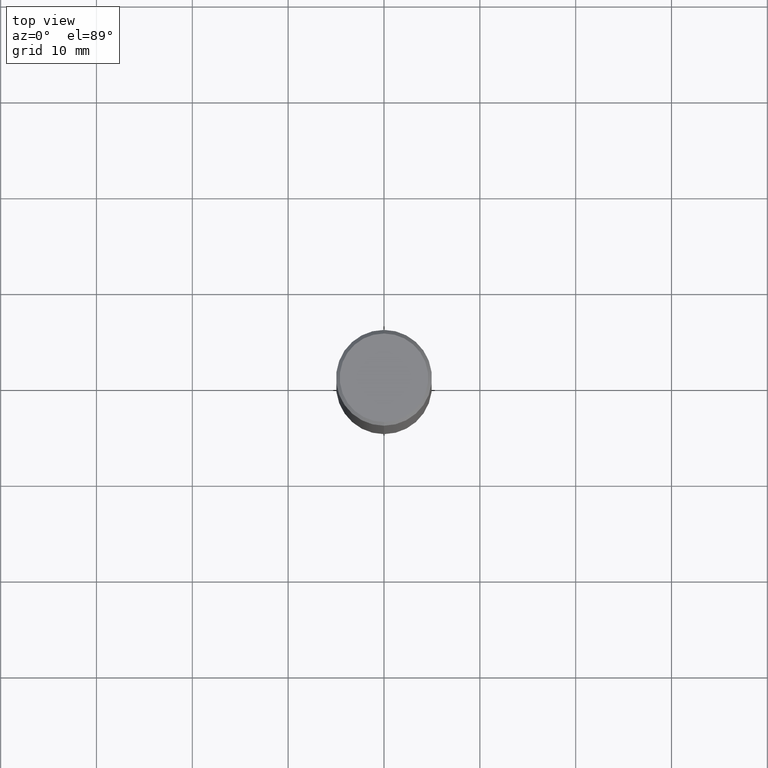
[diagram: clean part render]
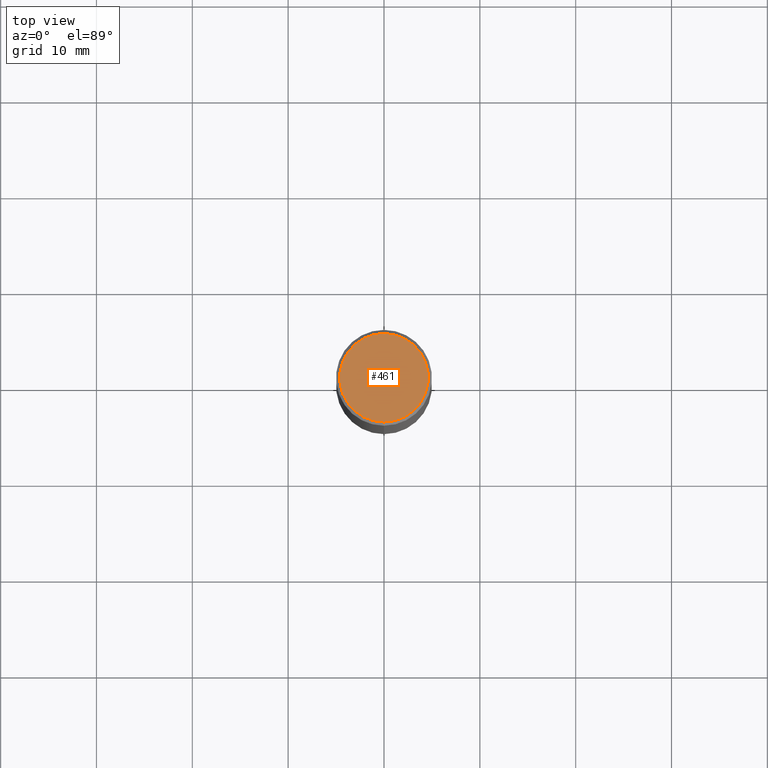
[diagram: same view with one face highlighted and labeled with its STEP entity id]
A machine part, top view. The second image highlights one B-rep face of the part: STEP entity #461.
In plain terms, the highlighted planar face has unit normal (0, -0, -1).
Its self-contained STEP definition (entity closure, byte-faithful):
#28 = CARTESIAN_POINT ( 'NONE',  ( 2.030115060229500884E-44, -2.897056693185172235E-30, -8.299521794288719114E-16 ) ) ;
#37 = CARTESIAN_POINT ( 'NONE',  ( 2.030115060229500884E-44, -2.897056693185172235E-30, -8.299521794288719114E-16 ) ) ;
#50 = CARTESIAN_POINT ( 'NONE',  ( 1.269851762937247450E-15, 0.1818500000000000116, -1.049747312338683111E-15 ) ) ;
#97 = AXIS2_PLACEMENT_3D ( 'NONE', #50, #298, #451 ) ;
#101 = CARTESIAN_POINT ( 'NONE',  ( 1.322223983019894726E-15, 0.1818500000000000116, -1.464723402053119215E-15 ) ) ;
#134 = EDGE_CURVE ( 'NONE', #465, #494, #489, .T. ) ;
#142 = ORIENTED_EDGE ( 'NONE', *, *, #134, .T. ) ;
#152 = DIRECTION ( 'NONE',  ( -2.446062689571483486E-29, 3.490630864032153582E-15, 1.000000000000000000 ) ) ;
#168 = AXIS2_PLACEMENT_3D ( 'NONE', #37, #152, #477 ) ;
#206 = CIRCLE ( 'NONE', #168, 0.1818500000000000116 ) ;
#213 = FACE_OUTER_BOUND ( 'NONE', #306, .T. ) ;
#295 = PLANE ( 'NONE',  #97 ) ;
#298 = DIRECTION ( 'NONE',  ( 2.446062689571483206E-29, -3.490630864032153582E-15, -1.000000000000000000 ) ) ;
#306 = EDGE_LOOP ( 'NONE', ( #337, #142 ) ) ;
#337 = ORIENTED_EDGE ( 'NONE', *, *, #403, .T. ) ;
#403 = EDGE_CURVE ( 'NONE', #494, #465, #206, .T. ) ;
#413 = CARTESIAN_POINT ( 'NONE',  ( -1.299035295878039226E-15, -0.1818500000000000116, -1.951809568046247559E-16 ) ) ;
#451 = DIRECTION ( 'NONE',  ( 6.982962677686265922E-15, 1.000000000000000000, -3.490630864032153582E-15 ) ) ;
#460 = AXIS2_PLACEMENT_3D ( 'NONE', #28, #504, #501 ) ;
#461 = ADVANCED_FACE ( 'NONE', ( #213 ), #295, .F. ) ;
#465 = VERTEX_POINT ( 'NONE', #413 ) ;
#477 = DIRECTION ( 'NONE',  ( -6.982962677686265133E-15, -1.000000000000000000, 3.490630864032153582E-15 ) ) ;
#489 = CIRCLE ( 'NONE', #460, 0.1818500000000000116 ) ;
#494 = VERTEX_POINT ( 'NONE', #101 ) ;
#501 = DIRECTION ( 'NONE',  ( -6.982962677686265133E-15, -1.000000000000000000, 3.490630864032153582E-15 ) ) ;
#504 = DIRECTION ( 'NONE',  ( -2.446062689571483486E-29, 3.490630864032153582E-15, 1.000000000000000000 ) ) ;